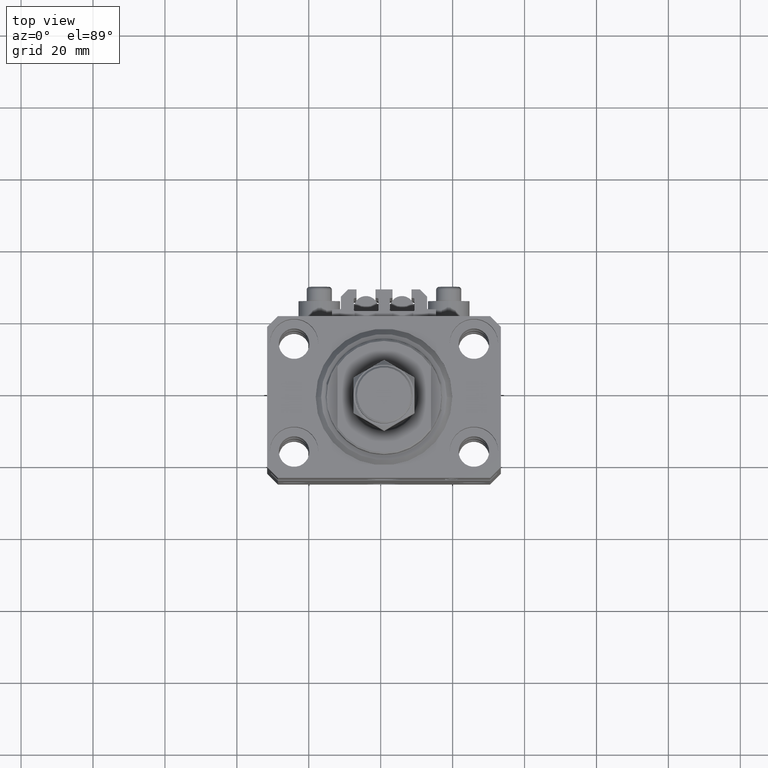
[diagram: clean part render]
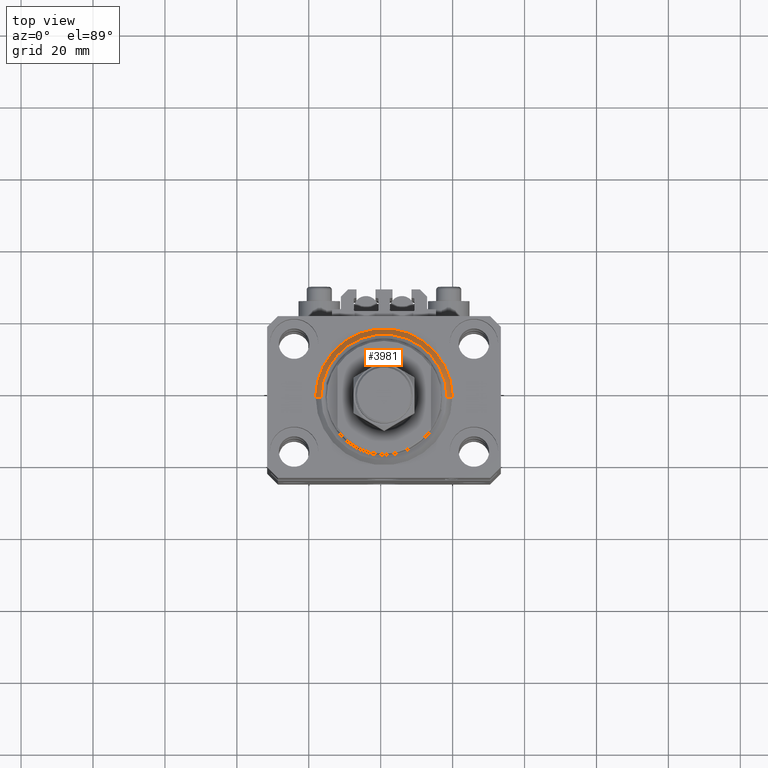
[diagram: same view with one face highlighted and labeled with its STEP entity id]
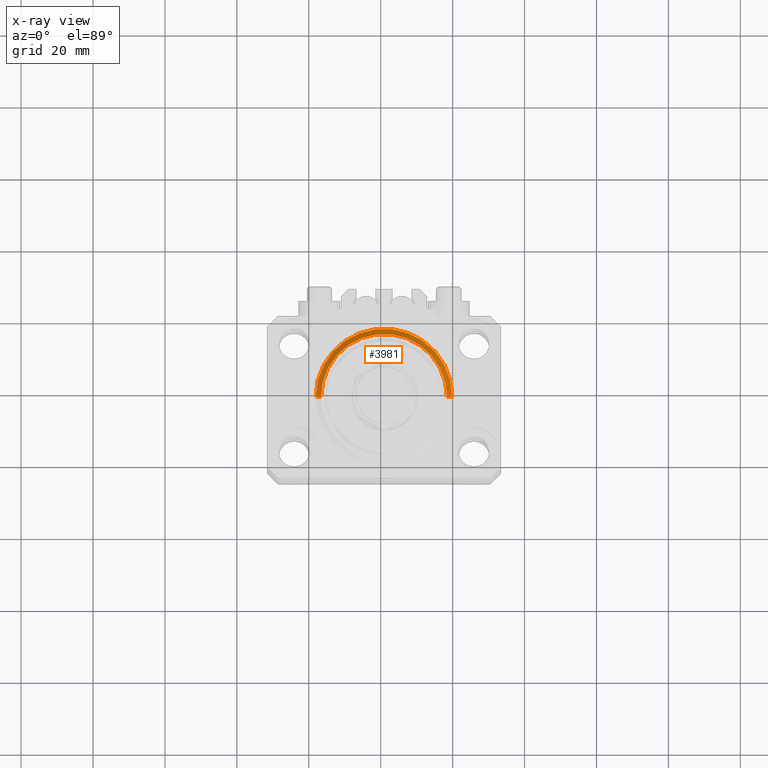
[diagram: x-ray of the same camera — body ghosted, the highlighted face saturated]
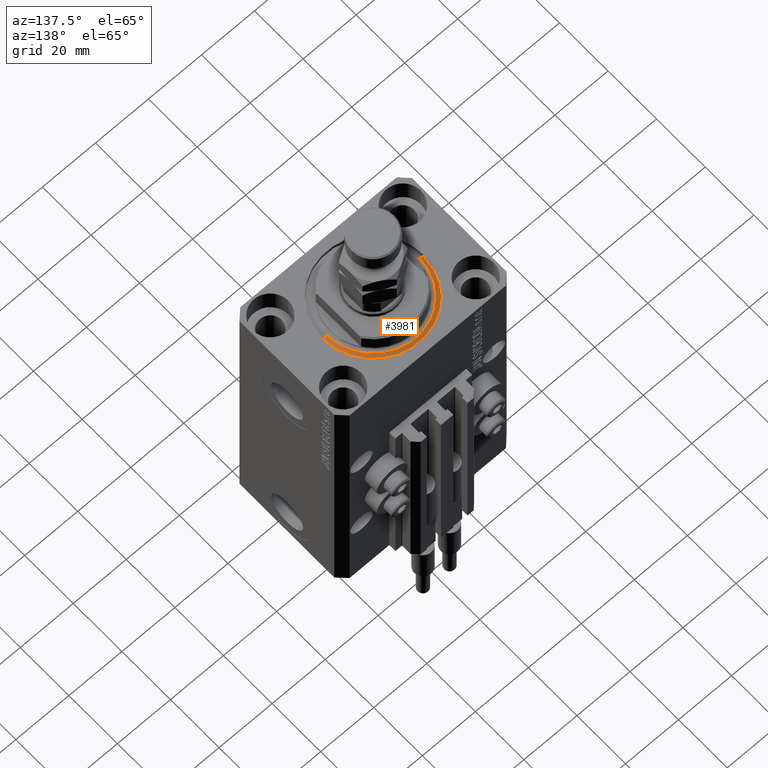
[diagram: same view with one face highlighted and labeled with its STEP entity id]
A machine part, top view. The second image highlights one B-rep face of the part: STEP entity #3981.
The next image is the same camera in x-ray: the body ghosted, the highlighted face saturated — about 0% of this face is hidden behind the body in this view.
A second angle (auxiliary view) of the same face is appended — the face is thin or edge-on in the first view.
In plain terms, the highlighted conical surface has half-angle 45 deg.
Its self-contained STEP definition (entity closure, byte-faithful):
#2036 = FACE_OUTER_BOUND ( 'NONE', #36034, .T. ) ;
#3981 = ADVANCED_FACE ( 'NONE', ( #2036 ), #19496, .T. ) ;
#4267 = ORIENTED_EDGE ( 'NONE', *, *, #43158, .T. ) ;
#7628 = AXIS2_PLACEMENT_3D ( 'NONE', #21373, #28750, #40409 ) ;
#10431 = CARTESIAN_POINT ( 'NONE',  ( 0.000000000000000000, 0.000000000000000000, 0.000000000000000000 ) ) ;
#10619 = EDGE_CURVE ( 'NONE', #32638, #38161, #16408, .T. ) ;
#12288 = CARTESIAN_POINT ( 'NONE',  ( -19.00000000000000000, 0.000000000000000000, 1.500000000000004885 ) ) ;
#13692 = LINE ( 'NONE', #49196, #40977 ) ;
#16148 = CARTESIAN_POINT ( 'NONE',  ( -17.49999999999999289, 2.234980408443919215E-15, 0.000000000000000000 ) ) ;
#16408 = CIRCLE ( 'NONE', #19632, 17.49999999999999289 ) ;
#17272 = DIRECTION ( 'NONE',  ( -0.000000000000000000, -0.000000000000000000, 1.000000000000000000 ) ) ;
#17378 = VERTEX_POINT ( 'NONE', #41131 ) ;
#17991 = DIRECTION ( 'NONE',  ( 0.7071067811865483499, 0.000000000000000000, 0.7071067811865467956 ) ) ;
#19178 = EDGE_CURVE ( 'NONE', #17378, #22415, #29542, .T. ) ;
#19496 = CONICAL_SURFACE ( 'NONE', #25928, 19.00000000000000000, 0.7853981633974492782 ) ;
#19632 = AXIS2_PLACEMENT_3D ( 'NONE', #10431, #42149, #22868 ) ;
#21373 = CARTESIAN_POINT ( 'NONE',  ( 0.000000000000000000, 0.000000000000000000, 1.500000000000004885 ) ) ;
#21827 = CARTESIAN_POINT ( 'NONE',  ( 0.000000000000000000, 0.000000000000000000, 1.500000000000004885 ) ) ;
#22415 = VERTEX_POINT ( 'NONE', #12288 ) ;
#22868 = DIRECTION ( 'NONE',  ( 1.000000000000000000, 0.000000000000000000, 0.000000000000000000 ) ) ;
#24369 = CARTESIAN_POINT ( 'NONE',  ( 17.49999999999999289, 0.000000000000000000, 0.000000000000000000 ) ) ;
#25928 = AXIS2_PLACEMENT_3D ( 'NONE', #21827, #17272, #32267 ) ;
#27295 = VECTOR ( 'NONE', #43689, 1000.000000000000000 ) ;
#27811 = ORIENTED_EDGE ( 'NONE', *, *, #41470, .F. ) ;
#28220 = LINE ( 'NONE', #43435, #27295 ) ;
#28750 = DIRECTION ( 'NONE',  ( -0.000000000000000000, -0.000000000000000000, 1.000000000000000000 ) ) ;
#29542 = CIRCLE ( 'NONE', #7628, 19.00000000000000000 ) ;
#29642 = ORIENTED_EDGE ( 'NONE', *, *, #19178, .F. ) ;
#32267 = DIRECTION ( 'NONE',  ( 1.000000000000000000, 0.000000000000000000, 0.000000000000000000 ) ) ;
#32638 = VERTEX_POINT ( 'NONE', #16148 ) ;
#36034 = EDGE_LOOP ( 'NONE', ( #42219, #4267, #29642, #27811 ) ) ;
#38161 = VERTEX_POINT ( 'NONE', #24369 ) ;
#40409 = DIRECTION ( 'NONE',  ( 1.000000000000000000, 0.000000000000000000, 0.000000000000000000 ) ) ;
#40977 = VECTOR ( 'NONE', #17991, 1000.000000000000000 ) ;
#41131 = CARTESIAN_POINT ( 'NONE',  ( 19.00000000000000000, 2.326828918379970970E-15, 1.500000000000004885 ) ) ;
#41470 = EDGE_CURVE ( 'NONE', #38161, #17378, #13692, .T. ) ;
#42149 = DIRECTION ( 'NONE',  ( -0.000000000000000000, -0.000000000000000000, -1.000000000000000000 ) ) ;
#42219 = ORIENTED_EDGE ( 'NONE', *, *, #10619, .F. ) ;
#43158 = EDGE_CURVE ( 'NONE', #32638, #22415, #28220, .T. ) ;
#43435 = CARTESIAN_POINT ( 'NONE',  ( -19.00000000000000000, 2.326828918379970970E-15, 1.500000000000004885 ) ) ;
#43689 = DIRECTION ( 'NONE',  ( -0.7071067811865483499, 8.659560562354943952E-17, 0.7071067811865467956 ) ) ;
#49196 = CARTESIAN_POINT ( 'NONE',  ( 19.00000000000000000, 0.000000000000000000, 1.500000000000004885 ) ) ;